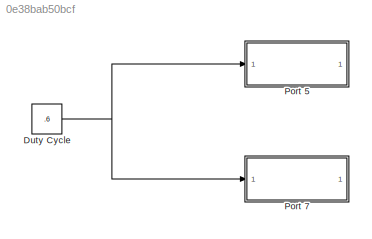
MODEL slx_0e38bab50bcf
KIND model
BLOCK [Constant] Duty Cycle
  Value = .6
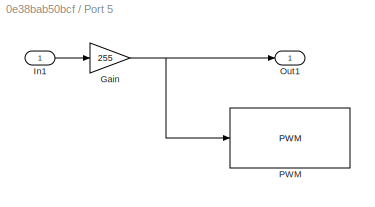
BLOCK [SubSystem] Port 5
  Ports = [1, 1]
  RequestExecContextInheritance = off
BLOCK [Gain] Port 5/Gain
  Gain = 255
  OutDataTypeStr = Inherit: Inherit via internal rule
  ParamDataTypeStr = Inherit: Inherit via internal rule
  SaturateOnIntegerOverflow = off
BLOCK [Inport] Port 5/In1
  IconDisplay = Port number
BLOCK [Outport] Port 5/Out1
  IconDisplay = Port number
BLOCK [Reference] Port 5/PWM  REF=arduinolib/PWM
  Ports = [1]
  SourceBlock = arduinolib/PWM
  SourceType = Arduino PWM
  pinNumber = 5
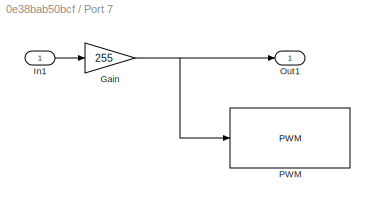
BLOCK [SubSystem] Port 7
  Ports = [1, 1]
  RequestExecContextInheritance = off
BLOCK [Gain] Port 7/Gain
  Gain = 255
  OutDataTypeStr = Inherit: Inherit via internal rule
  ParamDataTypeStr = Inherit: Inherit via internal rule
  SaturateOnIntegerOverflow = off
BLOCK [Inport] Port 7/In1
  IconDisplay = Port number
BLOCK [Outport] Port 7/Out1
  IconDisplay = Port number
BLOCK [Reference] Port 7/PWM  REF=arduinolib/PWM
  Ports = [1]
  SourceBlock = arduinolib/PWM
  SourceType = Arduino PWM
  pinNumber = 7
NET Duty Cycle:1 -> Port 5:1, Port 7:1
NET Port 5/Gain:1 -> Port 5/Out1:1, Port 5/PWM:1
LINE Port 5/In1:1 -> Port 5/Gain:1
NET Port 7/Gain:1 -> Port 7/Out1:1, Port 7/PWM:1
LINE Port 7/In1:1 -> Port 7/Gain:1
note: NET lines group one-source signal fan-out (src -> all destinations, sorted); 1:1 wires keep LINE
